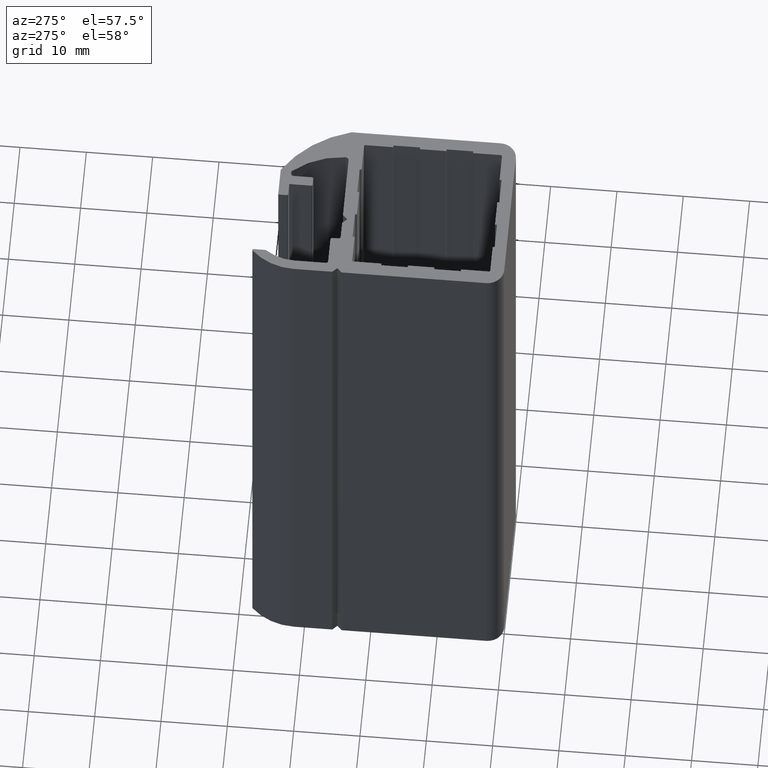
[diagram: clean part render]
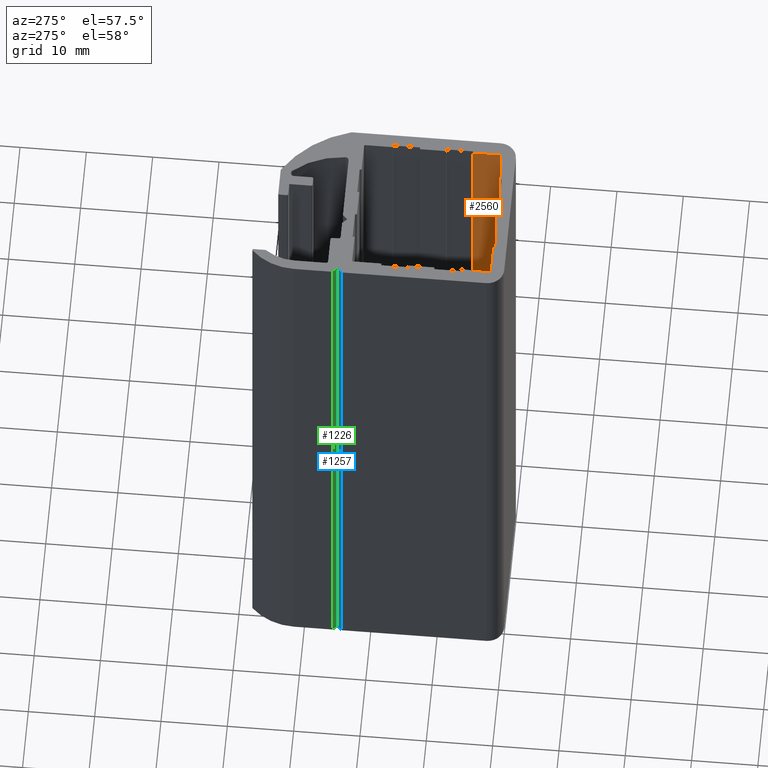
[diagram: same view with three faces highlighted in distinct colors, each labeled with its STEP entity id]
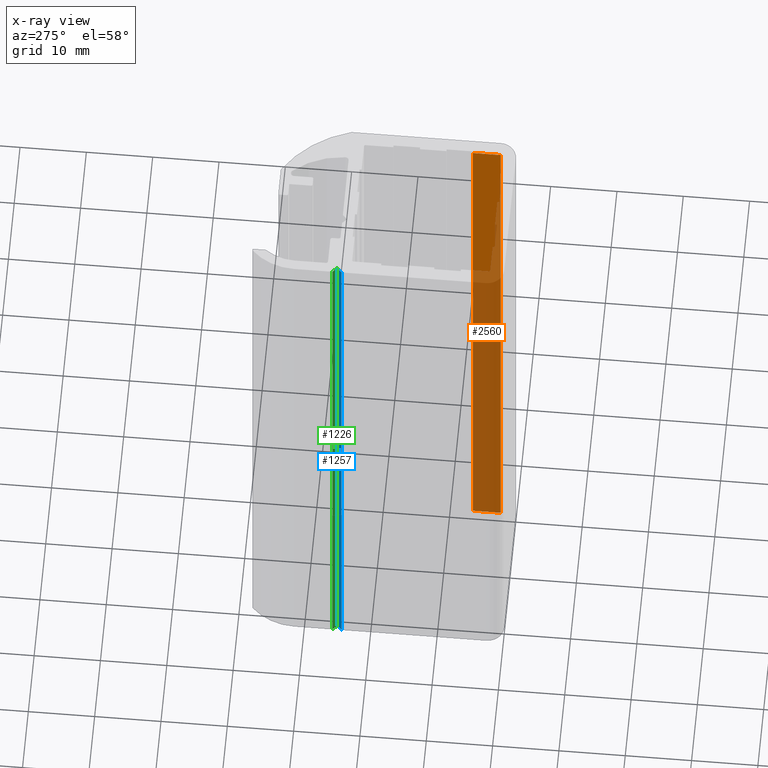
[diagram: x-ray of the same camera — body ghosted, the three highlighted faces saturated]
A machine part, auxiliary view with three faces highlighted in distinct colors.
The next image is the same camera in x-ray (body ghosted, the three faces saturated) — at least one of them is partly hidden behind the body in this view.
Their STEP definitions:

[orange] entity #2560 — the highlighted planar face has unit normal (-1, 0, 0).
#1318=CARTESIAN_POINT('',(10.399999999895954,2.299999999976990,0.0));
#1319=VERTEX_POINT('',#1318);
#1337=CARTESIAN_POINT('',(10.399999999895954,2.299999999976990,100.0));
#1338=VERTEX_POINT('',#1337);
#1346=CARTESIAN_POINT('',(10.399999999895954,2.299999999976990,0.0));
#1347=DIRECTION('',(0.0,0.0,1.0));
#1348=VECTOR('',#1347,100.0);
#1349=LINE('',#1346,#1348);
#1350=EDGE_CURVE('',#1319,#1338,#1349,.T.);
#2513=CARTESIAN_POINT('',(10.399999999895954,6.499999999934886,0.0));
#2514=VERTEX_POINT('',#2513);
#2521=CARTESIAN_POINT('',(10.399999999895954,6.499999999934886,100.0));
#2522=VERTEX_POINT('',#2521);
#2523=CARTESIAN_POINT('',(10.399999999895954,6.499999999934886,0.0));
#2524=DIRECTION('',(0.0,0.0,1.0));
#2525=VECTOR('',#2524,100.0);
#2526=LINE('',#2523,#2525);
#2527=EDGE_CURVE('',#2514,#2522,#2526,.T.);
#2539=CARTESIAN_POINT('',(10.399999999895954,6.499999999934886,0.0));
#2540=DIRECTION('',(-1.0,0.0,0.0));
#2541=DIRECTION('',(0.0,-1.0,0.0));
#2542=AXIS2_PLACEMENT_3D('',#2539,#2540,#2541);
#2543=PLANE('',#2542);
#2544=CARTESIAN_POINT('',(10.399999999895954,6.499999999934886,0.0));
#2545=DIRECTION('',(0.0,-1.0,0.0));
#2546=VECTOR('',#2545,4.199999999957896);
#2547=LINE('',#2544,#2546);
#2548=EDGE_CURVE('',#2514,#1319,#2547,.T.);
#2549=ORIENTED_EDGE('',*,*,#2548,.T.);
#2550=ORIENTED_EDGE('',*,*,#1350,.T.);
#2551=CARTESIAN_POINT('',(10.399999999895954,6.499999999934886,100.0));
#2552=DIRECTION('',(0.0,-1.0,0.0));
#2553=VECTOR('',#2552,4.199999999957896);
#2554=LINE('',#2551,#2553);
#2555=EDGE_CURVE('',#2522,#1338,#2554,.T.);
#2556=ORIENTED_EDGE('',*,*,#2555,.F.);
#2557=ORIENTED_EDGE('',*,*,#2527,.F.);
#2558=EDGE_LOOP('',(#2549,#2550,#2556,#2557));
#2559=FACE_OUTER_BOUND('',#2558,.T.);
#2560=ADVANCED_FACE('',(#2559),#2543,.T.);

[blue] entity #1257 — the highlighted planar face has unit normal (-0.7071, 0.7071, 0).
#1201=CARTESIAN_POINT('',(-11.792893218695099,24.999999999750003,0.0));
#1202=VERTEX_POINT('',#1201);
#1209=CARTESIAN_POINT('',(-11.792893218695099,24.999999999750003,100.0));
#1210=VERTEX_POINT('',#1209);
#1211=CARTESIAN_POINT('',(-11.792893218695099,24.999999999750003,0.0));
#1212=DIRECTION('',(0.0,0.0,1.0));
#1213=VECTOR('',#1212,100.0);
#1214=LINE('',#1211,#1213);
#1215=EDGE_CURVE('',#1202,#1210,#1214,.T.);
#1227=CARTESIAN_POINT('',(-11.792893218695099,24.999999999750003,0.0));
#1228=DIRECTION('',(-0.707106781186377,0.707106781186718,0.0));
#1229=DIRECTION('',(-0.707106781186718,-0.707106781186377,0.0));
#1230=AXIS2_PLACEMENT_3D('',#1227,#1228,#1229);
#1231=PLANE('',#1230);
#1232=CARTESIAN_POINT('',(-12.499999999874944,24.292893218570498,0.0));
#1233=VERTEX_POINT('',#1232);
#1234=CARTESIAN_POINT('',(-11.792893218695099,24.999999999750003,0.0));
#1235=DIRECTION('',(-0.707106781186718,-0.707106781186377,0.0));
#1236=VECTOR('',#1235,0.999999999990281);
#1237=LINE('',#1234,#1236);
#1238=EDGE_CURVE('',#1202,#1233,#1237,.T.);
#1239=ORIENTED_EDGE('',*,*,#1238,.T.);
#1240=CARTESIAN_POINT('',(-12.499999999874944,24.292893218570498,100.0));
#1241=VERTEX_POINT('',#1240);
#1242=CARTESIAN_POINT('',(-12.499999999874944,24.292893218570498,0.0));
#1243=DIRECTION('',(0.0,0.0,1.0));
#1244=VECTOR('',#1243,100.0);
#1245=LINE('',#1242,#1244);
#1246=EDGE_CURVE('',#1233,#1241,#1245,.T.);
#1247=ORIENTED_EDGE('',*,*,#1246,.T.);
#1248=CARTESIAN_POINT('',(-11.792893218695099,24.999999999750003,100.0));
#1249=DIRECTION('',(-0.707106781186718,-0.707106781186377,0.0));
#1250=VECTOR('',#1249,0.999999999990281);
#1251=LINE('',#1248,#1250);
#1252=EDGE_CURVE('',#1210,#1241,#1251,.T.);
#1253=ORIENTED_EDGE('',*,*,#1252,.F.);
#1254=ORIENTED_EDGE('',*,*,#1215,.F.);
#1255=EDGE_LOOP('',(#1239,#1247,#1253,#1254));
#1256=FACE_OUTER_BOUND('',#1255,.T.);
#1257=ADVANCED_FACE('',(#1256),#1231,.T.);

[green] entity #1226 — the highlighted planar face has unit normal (-0.7071, -0.7071, 0).
#1170=CARTESIAN_POINT('',(-12.499999999874944,25.707106780929479,0.0));
#1171=VERTEX_POINT('',#1170);
#1178=CARTESIAN_POINT('',(-12.499999999874944,25.707106780929479,100.0));
#1179=VERTEX_POINT('',#1178);
#1180=CARTESIAN_POINT('',(-12.499999999874944,25.707106780929479,0.0));
#1181=DIRECTION('',(0.0,0.0,1.0));
#1182=VECTOR('',#1181,100.0);
#1183=LINE('',#1180,#1182);
#1184=EDGE_CURVE('',#1171,#1179,#1183,.T.);
#1196=CARTESIAN_POINT('',(-12.499999999874944,25.707106780929479,0.0));
#1197=DIRECTION('',(-0.707106781186363,-0.707106781186732,0.0));
#1198=DIRECTION('',(0.707106781186732,-0.707106781186363,0.0));
#1199=AXIS2_PLACEMENT_3D('',#1196,#1197,#1198);
#1200=PLANE('',#1199);
#1201=CARTESIAN_POINT('',(-11.792893218695099,24.999999999750003,0.0));
#1202=VERTEX_POINT('',#1201);
#1203=CARTESIAN_POINT('',(-12.499999999874944,25.707106780929479,0.0));
#1204=DIRECTION('',(0.707106781186732,-0.707106781186363,0.0));
#1205=VECTOR('',#1204,0.999999999990261);
#1206=LINE('',#1203,#1205);
#1207=EDGE_CURVE('',#1171,#1202,#1206,.T.);
#1208=ORIENTED_EDGE('',*,*,#1207,.T.);
#1209=CARTESIAN_POINT('',(-11.792893218695099,24.999999999750003,100.0));
#1210=VERTEX_POINT('',#1209);
#1211=CARTESIAN_POINT('',(-11.792893218695099,24.999999999750003,0.0));
#1212=DIRECTION('',(0.0,0.0,1.0));
#1213=VECTOR('',#1212,100.0);
#1214=LINE('',#1211,#1213);
#1215=EDGE_CURVE('',#1202,#1210,#1214,.T.);
#1216=ORIENTED_EDGE('',*,*,#1215,.T.);
#1217=CARTESIAN_POINT('',(-12.499999999874944,25.707106780929479,100.0));
#1218=DIRECTION('',(0.707106781186732,-0.707106781186363,0.0));
#1219=VECTOR('',#1218,0.999999999990261);
#1220=LINE('',#1217,#1219);
#1221=EDGE_CURVE('',#1179,#1210,#1220,.T.);
#1222=ORIENTED_EDGE('',*,*,#1221,.F.);
#1223=ORIENTED_EDGE('',*,*,#1184,.F.);
#1224=EDGE_LOOP('',(#1208,#1216,#1222,#1223));
#1225=FACE_OUTER_BOUND('',#1224,.T.);
#1226=ADVANCED_FACE('',(#1225),#1200,.T.);